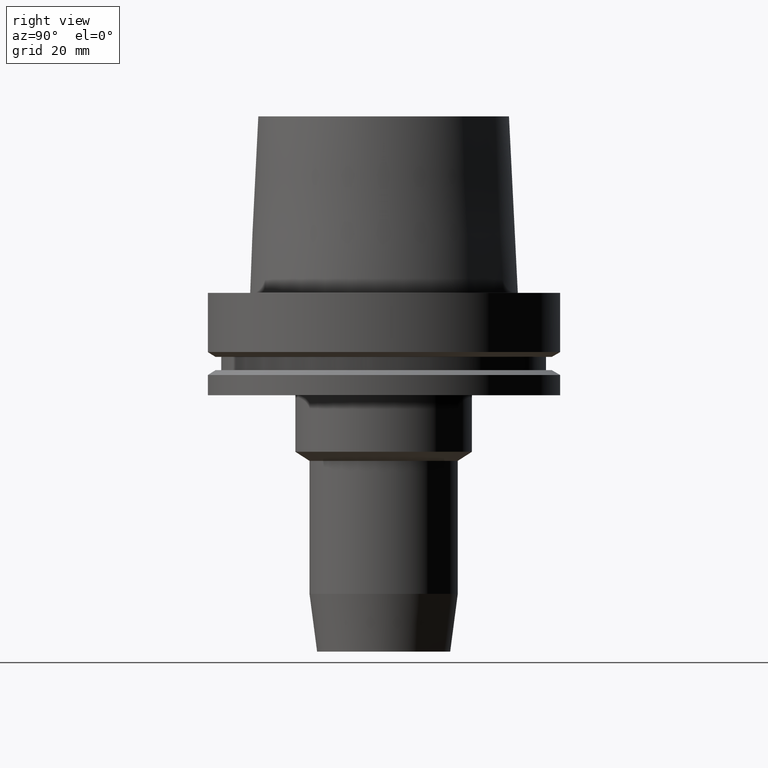
[diagram: clean part render]
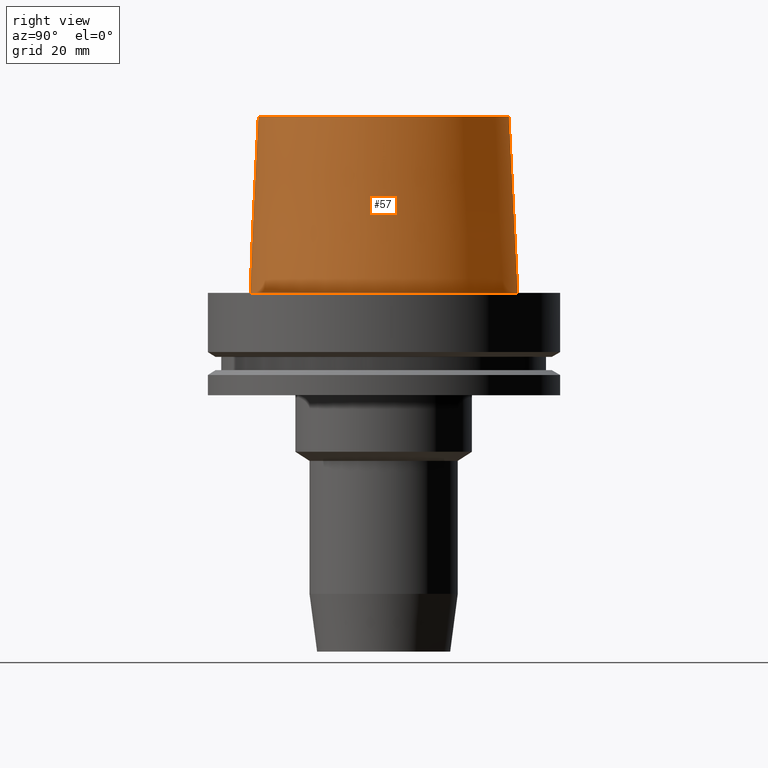
[diagram: same view with one face highlighted and labeled with its STEP entity id]
A machine part, right view. The second image highlights one B-rep face of the part: STEP entity #57.
In plain terms, the highlighted conical surface has half-angle 2.862 deg.
Its self-contained STEP definition (entity closure, byte-faithful):
#57=ADVANCED_FACE('Unnamed[1]',(#154,#155),#156,.T.);
#96=EDGE_CURVE('Unnamed[1]',#215,#215,#216,.T.);
#126=EDGE_CURVE('Unnamed[1]',#262,#262,#263,.T.);
#154=FACE_BOUND('',#287,.T.);
#155=FACE_BOUND('',#288,.T.);
#156=CONICAL_SURFACE('',#289,36.7500000007484,0.0499583956894843);
#215=VERTEX_POINT('',#362);
#216=CIRCLE('',#363,35.5000000015618);
#262=VERTEX_POINT('',#421);
#263=CIRCLE('',#422,37.9999999999349);
#287=EDGE_LOOP('',(#443));
#288=EDGE_LOOP('',(#444));
#289=AXIS2_PLACEMENT_3D('',#445,#446,#447);
#362=CARTESIAN_POINT('',(-3.06161699786838E-015,35.5000000015618,50.0));
#363=AXIS2_PLACEMENT_3D('',#511,#512,#513);
#421=CARTESIAN_POINT('',(-3.3636548776863E-032,37.9999999999349,-2.44634216324803E-015));
#422=AXIS2_PLACEMENT_3D('',#564,#565,#566);
#443=ORIENTED_EDGE('',*,*,#126,.F.);
#444=ORIENTED_EDGE('',*,*,#96,.T.);
#445=CARTESIAN_POINT('',(-1.53080849893419E-015,-3.06161699786838E-015,25.0));
#446=DIRECTION('',(6.12323399573676E-017,1.22464679914735E-016,-1.0));
#447=DIRECTION('',(-1.23259516440783E-032,1.0,1.22464679914735E-016));
#511=CARTESIAN_POINT('',(-3.06161699786838E-015,-6.12323399573676E-015,50.0));
#512=DIRECTION('',(6.12323399573677E-017,1.22464679914735E-016,-1.0));
#513=DIRECTION('',(-1.23259516440783E-032,1.0,1.22464679914735E-016));
#564=CARTESIAN_POINT('',(0.0,0.0,0.0));
#565=DIRECTION('',(6.12323399573677E-017,1.22464679914735E-016,-1.0));
#566=DIRECTION('',(-1.23259516440783E-032,1.0,1.22464679914735E-016));